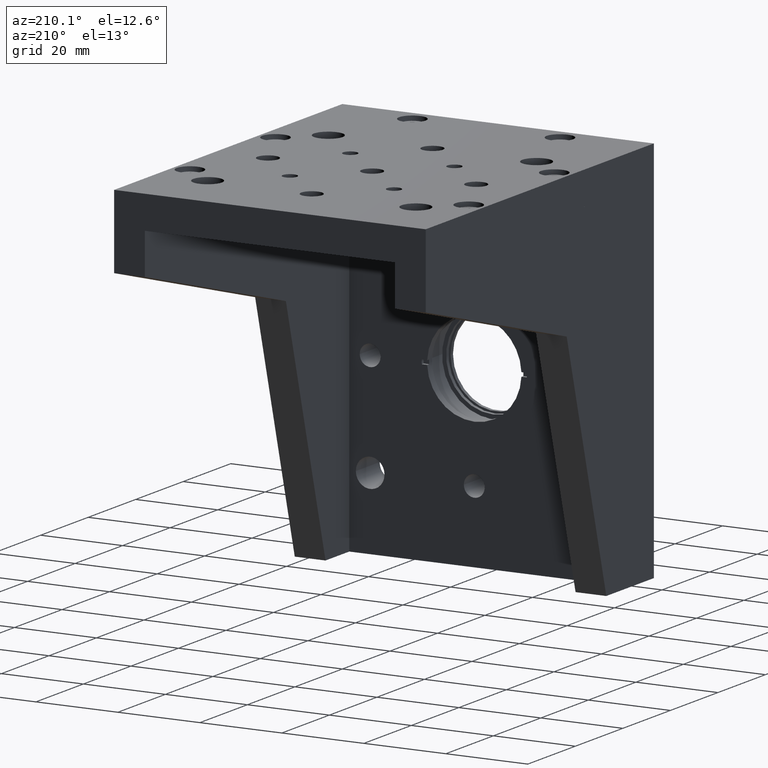
[diagram: clean part render]
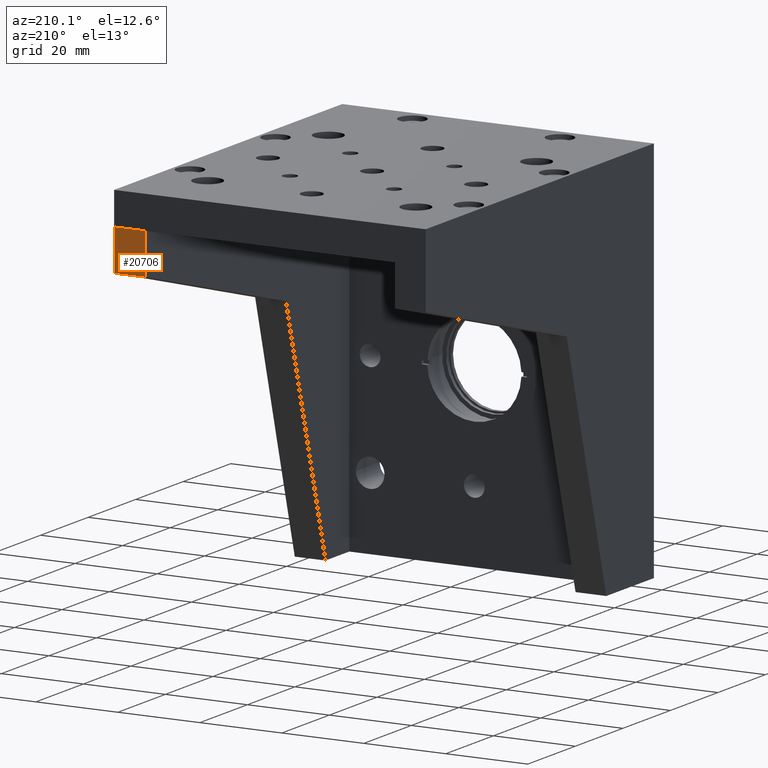
[diagram: same view with one face highlighted and labeled with its STEP entity id]
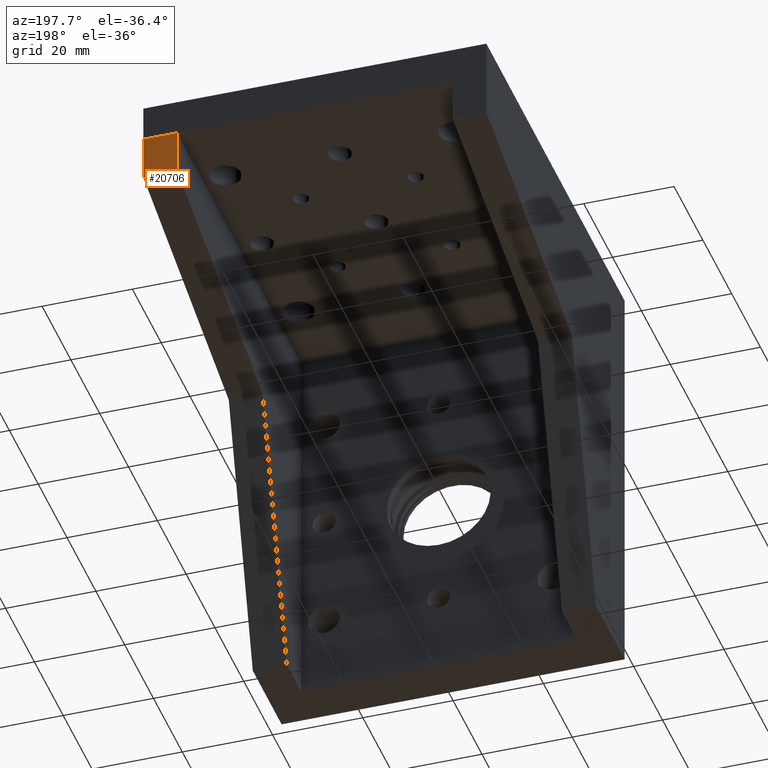
[diagram: same view with one face highlighted and labeled with its STEP entity id]
A machine part, auxiliary view. The second image highlights one B-rep face of the part: STEP entity #20706.
A second angle (auxiliary view) of the same face is appended — the face is thin or edge-on in the first view.
In plain terms, the highlighted planar face has unit normal (-0, -1, 0).
Its self-contained STEP definition (entity closure, byte-faithful):
#449 = CARTESIAN_POINT ( 'NONE',  ( 37.99999999999999300, 95.99999999999998600, 42.99999999999992900 ) ) ;
#752 = DIRECTION ( 'NONE',  ( -1.000000000000000000, 1.243874295057008600E-031, 1.232595164407831200E-031 ) ) ;
#2177 = VERTEX_POINT ( 'NONE', #22556 ) ;
#2343 = FACE_OUTER_BOUND ( 'NONE', #3509, .T. ) ;
#2973 = CARTESIAN_POINT ( 'NONE',  ( 37.99999999999999300, 95.99999999999998600, 42.99999999999992900 ) ) ;
#3509 = EDGE_LOOP ( 'NONE', ( #26151, #31459, #15690, #34603 ) ) ;
#4778 = LINE ( 'NONE', #2973, #24399 ) ;
#5258 = VERTEX_POINT ( 'NONE', #17907 ) ;
#6516 = CARTESIAN_POINT ( 'NONE',  ( 38.00000000000000700, 95.99999999999998600, 32.99999999999991500 ) ) ;
#6977 = VERTEX_POINT ( 'NONE', #29503 ) ;
#9892 = VERTEX_POINT ( 'NONE', #6516 ) ;
#11263 = VECTOR ( 'NONE', #31041, 1000.000000000000000 ) ;
#12945 = LINE ( 'NONE', #449, #21014 ) ;
#13703 = DIRECTION ( 'NONE',  ( -1.232595164407830900E-031, 0.0000000000000000000, 1.000000000000000000 ) ) ;
#15690 = ORIENTED_EDGE ( 'NONE', *, *, #35142, .F. ) ;
#16902 = DIRECTION ( 'NONE',  ( -1.000000000000000000, 1.243874295057008600E-031, 1.232595164407831200E-031 ) ) ;
#17907 = CARTESIAN_POINT ( 'NONE',  ( 37.99999999999999300, 95.99999999999998600, 42.99999999999992900 ) ) ;
#19576 = CARTESIAN_POINT ( 'NONE',  ( 38.00000000000000700, 95.99999999999998600, 32.99999999999991500 ) ) ;
#19996 = CARTESIAN_POINT ( 'NONE',  ( 30.50000000000000000, 95.99999999999998600, 42.99999999999992900 ) ) ;
#20706 = ADVANCED_FACE ( 'NONE', ( #2343 ), #25383, .F. ) ;
#20882 = VECTOR ( 'NONE', #752, 1000.000000000000000 ) ;
#21014 = VECTOR ( 'NONE', #22877, 1000.000000000000000 ) ;
#22556 = CARTESIAN_POINT ( 'NONE',  ( 30.50000000000000000, 95.99999999999998600, 42.99999999999992900 ) ) ;
#22877 = DIRECTION ( 'NONE',  ( -1.000000000000000000, 1.243874295057008600E-031, 1.232595164407831200E-031 ) ) ;
#23249 = EDGE_CURVE ( 'NONE', #9892, #6977, #27835, .T. ) ;
#24399 = VECTOR ( 'NONE', #13703, 1000.000000000000000 ) ;
#25152 = DIRECTION ( 'NONE',  ( -1.243874295057008600E-031, -1.000000000000000000, 3.066386882436937300E-062 ) ) ;
#25383 = PLANE ( 'NONE',  #31608 ) ;
#26027 = EDGE_CURVE ( 'NONE', #6977, #2177, #35228, .T. ) ;
#26151 = ORIENTED_EDGE ( 'NONE', *, *, #26027, .T. ) ;
#26993 = EDGE_CURVE ( 'NONE', #5258, #2177, #12945, .T. ) ;
#27678 = CARTESIAN_POINT ( 'NONE',  ( 37.99999999999999300, 95.99999999999998600, 42.99999999999992900 ) ) ;
#27835 = LINE ( 'NONE', #19576, #20882 ) ;
#29503 = CARTESIAN_POINT ( 'NONE',  ( 30.49999999999996400, 95.99999999999998600, 32.99999999999991500 ) ) ;
#31041 = DIRECTION ( 'NONE',  ( -1.232595164407830900E-031, 0.0000000000000000000, 1.000000000000000000 ) ) ;
#31459 = ORIENTED_EDGE ( 'NONE', *, *, #26993, .F. ) ;
#31608 = AXIS2_PLACEMENT_3D ( 'NONE', #27678, #25152, #16902 ) ;
#34603 = ORIENTED_EDGE ( 'NONE', *, *, #23249, .T. ) ;
#35142 = EDGE_CURVE ( 'NONE', #9892, #5258, #4778, .T. ) ;
#35228 = LINE ( 'NONE', #19996, #11263 ) ;